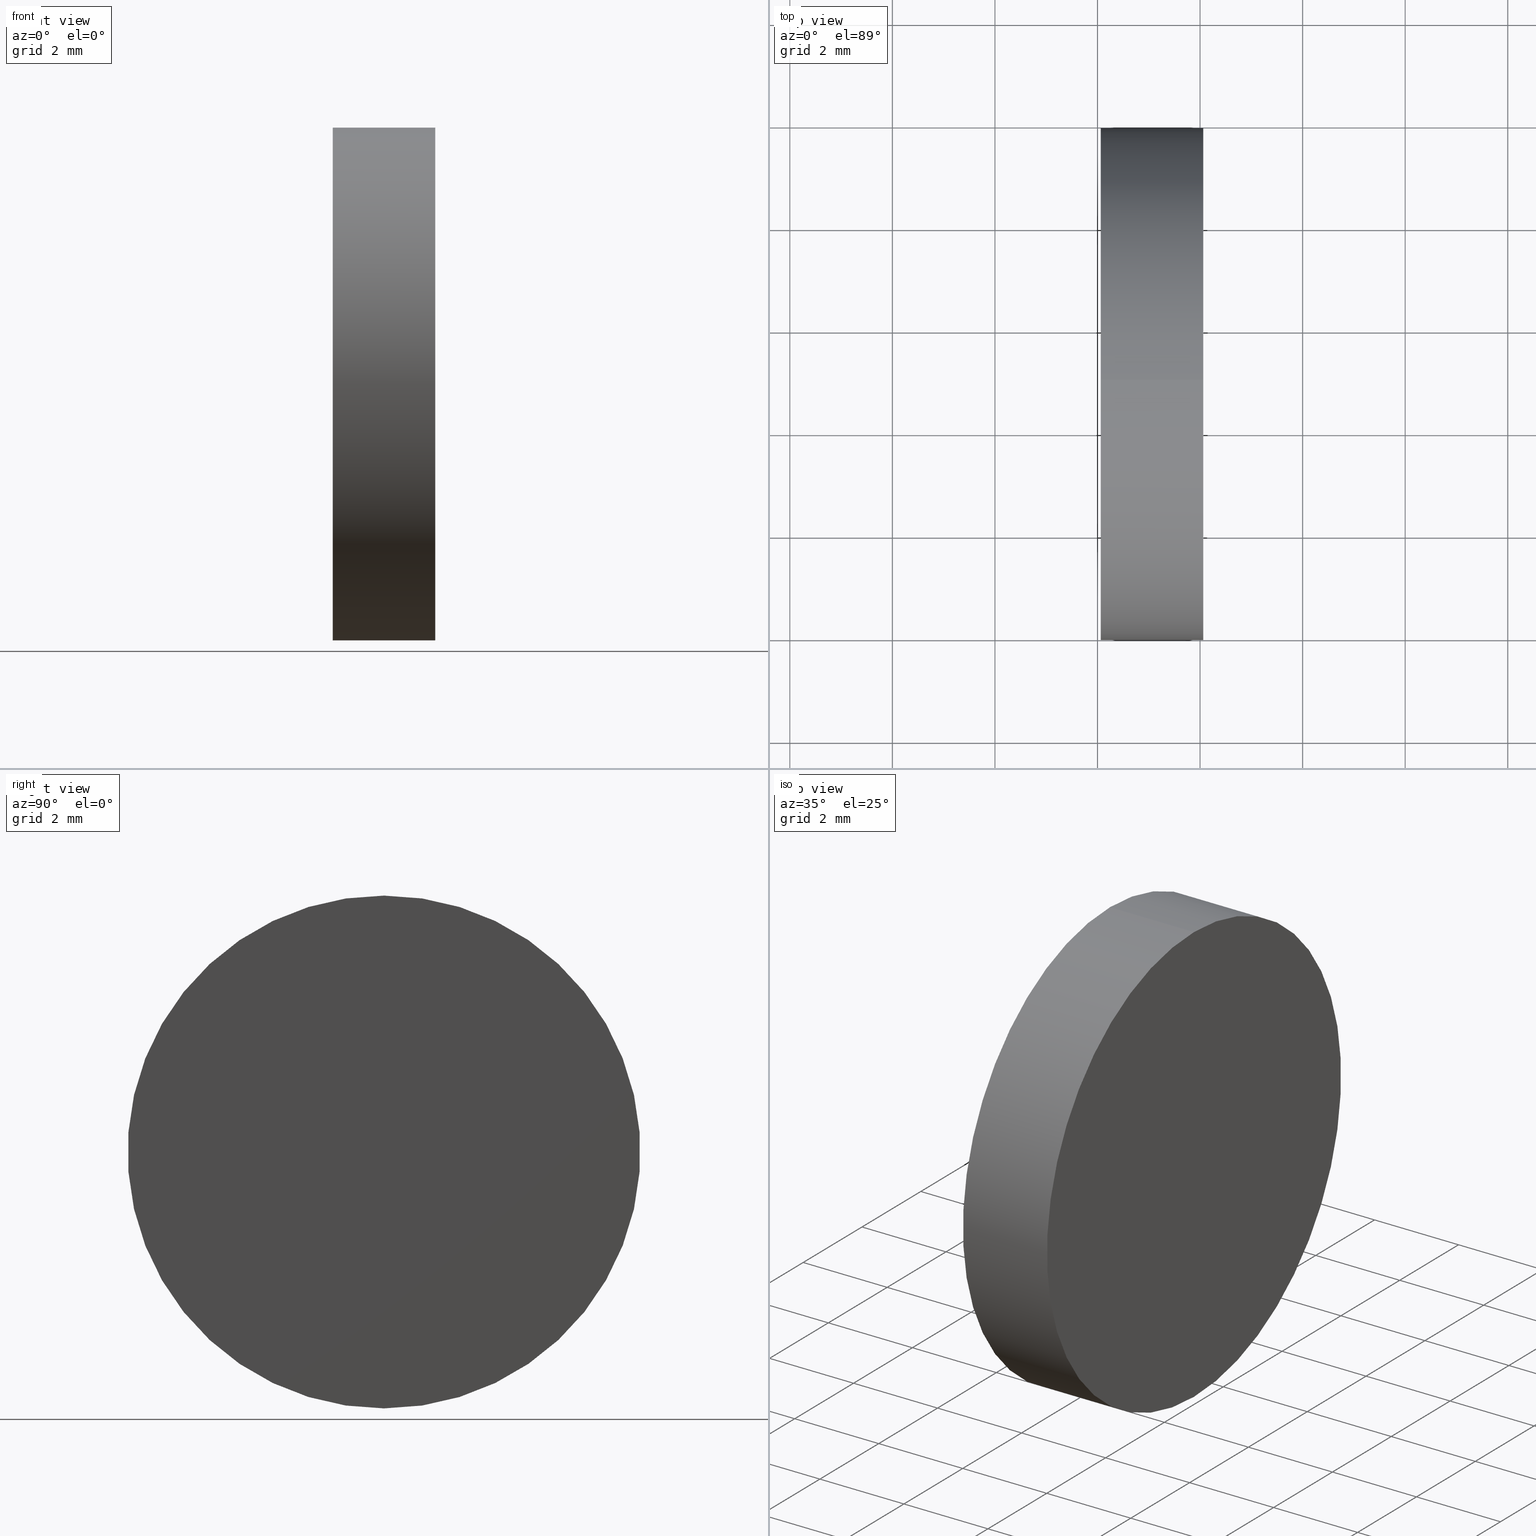
[diagram: canonical four-view strip — front | top / right | iso, engineering-drawing reading convention]
A machine part, canonical four-view strip (front | top / right | iso — engineering-drawing reading convention). The complete STEP part file that produces these views, byte-faithful:
ISO-10303-21;
HEADER;
FILE_DESCRIPTION (( 'STEP AP214' ),
    '1' );
FILE_NAME ('260002.STEP',
    '2019-07-15T02:53:04',
    ( '' ),
    ( '' ),
    'SwSTEP 2.0',
    'SolidWorks 2016',
    '' );
FILE_SCHEMA (( 'AUTOMOTIVE_DESIGN' ));
ENDSEC;

DATA;
#1 = FACE_OUTER_BOUND ( 'NONE', #66, .T. ) ;
#2 = EDGE_CURVE ( 'NONE', #92, #76, #18, .T. ) ;
#3 = CARTESIAN_POINT ( 'NONE',  ( 104.0628561970244000, 30.91727173960616800, -4.999999999999993800 ) ) ;
#4 =( NAMED_UNIT ( * ) SI_UNIT ( $, .STERADIAN. ) SOLID_ANGLE_UNIT ( ) );
#5 = ADVANCED_FACE ( 'NONE', ( #63 ), #21, .T. ) ;
#6 = ADVANCED_FACE ( 'NONE', ( #41 ), #122, .F. ) ;
#7 = COLOUR_RGB ( '',1.000000000000000000, 1.000000000000000000, 1.000000000000000000 ) ;
#8 = PRODUCT_RELATED_PRODUCT_CATEGORY ( 'part', '', ( #71 ) ) ;
#9 = PRESENTATION_LAYER_ASSIGNMENT (  '', '', ( #119 ) ) ;
#10 = UNCERTAINTY_MEASURE_WITH_UNIT (LENGTH_MEASURE( 1.000000000000000100E-005 ), #57, 'distance_accuracy_value', 'NONE');
#11 = DIRECTION ( 'NONE',  ( -1.000000000000000000, -0.0000000000000000000, -0.0000000000000000000 ) ) ;
#12 = APPLICATION_PROTOCOL_DEFINITION ( 'draft international standard', 'automotive_design', 1998, #70 ) ;
#13 = DIRECTION ( 'NONE',  ( 0.0000000000000000000, 0.0000000000000000000, 1.000000000000000000 ) ) ;
#14 = AXIS2_PLACEMENT_3D ( 'NONE', #69, #113, #82 ) ;
#15 = EDGE_CURVE ( 'NONE', #139, #42, #133, .T. ) ;
#16 = CARTESIAN_POINT ( 'NONE',  ( 104.0628561970244000, 30.91727173960616800, 0.0000000000000000000 ) ) ;
#17 = DIRECTION ( 'NONE',  ( -1.000000000000000000, -0.0000000000000000000, -0.0000000000000000000 ) ) ;
#18 = LINE ( 'NONE', #132, #53 ) ;
#19 = SURFACE_STYLE_USAGE ( .BOTH. , #84 ) ;
#20 = CARTESIAN_POINT ( 'NONE',  ( 106.0628561970244000, 30.91727173960616800, 0.0000000000000000000 ) ) ;
#21 = CYLINDRICAL_SURFACE ( 'NONE', #14, 4.999999999999993800 ) ;
#22 = ORIENTED_EDGE ( 'NONE', *, *, #111, .T. ) ;
#23 = CARTESIAN_POINT ( 'NONE',  ( 0.0000000000000000000, 0.0000000000000000000, 0.0000000000000000000 ) ) ;
#24 = AXIS2_PLACEMENT_3D ( 'NONE', #16, #56, #31 ) ;
#25 = ORIENTED_EDGE ( 'NONE', *, *, #78, .T. ) ;
#26 = CIRCLE ( 'NONE', #112, 4.999999999999993800 ) ;
#27 = CIRCLE ( 'NONE', #108, 4.999999999999993800 ) ;
#28 = PLANE ( 'NONE',  #47 ) ;
#29 = AXIS2_PLACEMENT_3D ( 'NONE', #23, #49, #109 ) ;
#30 = PRODUCT_DEFINITION_SHAPE ( 'NONE', 'NONE',  #64 ) ;
#31 = DIRECTION ( 'NONE',  ( 0.0000000000000000000, 0.0000000000000000000, 1.000000000000000000 ) ) ;
#32 = DIRECTION ( 'NONE',  ( -1.000000000000000000, -0.0000000000000000000, -0.0000000000000000000 ) ) ;
#33 = ADVANCED_FACE ( 'NONE', ( #1 ), #65, .T. ) ;
#34 = PRESENTATION_STYLE_ASSIGNMENT (( #136 ) ) ;
#35 =( LENGTH_UNIT ( ) NAMED_UNIT ( * ) SI_UNIT ( .MILLI., .METRE. ) );
#36 = MECHANICAL_DESIGN_GEOMETRIC_PRESENTATION_REPRESENTATION (  '', ( #74 ), #102 ) ;
#37 = DIRECTION ( 'NONE',  ( 1.000000000000000000, 0.0000000000000000000, 0.0000000000000000000 ) ) ;
#38 = APPLICATION_PROTOCOL_DEFINITION ( 'draft international standard', 'automotive_design', 1998, #127 ) ;
#39 = SHAPE_DEFINITION_REPRESENTATION ( #30, #128 ) ;
#40 = PRESENTATION_LAYER_ASSIGNMENT (  '', '', ( #74 ) ) ;
#41 = FACE_OUTER_BOUND ( 'NONE', #79, .T. ) ;
#42 = VERTEX_POINT ( 'NONE', #81 ) ;
#43 = UNCERTAINTY_MEASURE_WITH_UNIT (LENGTH_MEASURE( 1.000000000000000100E-005 ), #35, 'distance_accuracy_value', 'NONE');
#44 = ORIENTED_EDGE ( 'NONE', *, *, #78, .F. ) ;
#45 =( GEOMETRIC_REPRESENTATION_CONTEXT ( 3 ) GLOBAL_UNCERTAINTY_ASSIGNED_CONTEXT ( ( #43 ) ) GLOBAL_UNIT_ASSIGNED_CONTEXT ( ( #35, #116, #51 ) ) REPRESENTATION_CONTEXT ( 'NONE', 'WORKASPACE' ) );
#46 = FILL_AREA_STYLE ('',( #95 ) ) ;
#47 = AXIS2_PLACEMENT_3D ( 'NONE', #61, #37, #137 ) ;
#48 = CARTESIAN_POINT ( 'NONE',  ( 106.0628561970244000, 30.91727173960616400, 0.0000000000000000000 ) ) ;
#49 = DIRECTION ( 'NONE',  ( 0.0000000000000000000, 0.0000000000000000000, 1.000000000000000000 ) ) ;
#50 = ORIENTED_EDGE ( 'NONE', *, *, #60, .F. ) ;
#51 =( NAMED_UNIT ( * ) SI_UNIT ( $, .STERADIAN. ) SOLID_ANGLE_UNIT ( ) );
#52 = AXIS2_PLACEMENT_3D ( 'NONE', #138, #100, #13 ) ;
#53 = VECTOR ( 'NONE', #32, 1000.000000000000000 ) ;
#54 = AXIS2_PLACEMENT_3D ( 'NONE', #48, #106, #68 ) ;
#55 = ORIENTED_EDGE ( 'NONE', *, *, #15, .F. ) ;
#56 = DIRECTION ( 'NONE',  ( -1.000000000000000000, -0.0000000000000000000, -0.0000000000000000000 ) ) ;
#57 =( LENGTH_UNIT ( ) NAMED_UNIT ( * ) SI_UNIT ( .MILLI., .METRE. ) );
#58 = FILL_AREA_STYLE ('',( #123 ) ) ;
#59 = ORIENTED_EDGE ( 'NONE', *, *, #120, .F. ) ;
#60 = EDGE_CURVE ( 'NONE', #42, #76, #101, .T. ) ;
#61 = CARTESIAN_POINT ( 'NONE',  ( 104.0628561970244000, 30.91727173960616400, 0.0000000000000000000 ) ) ;
#62 = PRODUCT_DEFINITION_CONTEXT ( 'detailed design', #127, 'design' ) ;
#63 = FACE_OUTER_BOUND ( 'NONE', #105, .T. ) ;
#64 = PRODUCT_DEFINITION ( 'δ֪', '', #90, #62 ) ;
#65 = CYLINDRICAL_SURFACE ( 'NONE', #93, 4.999999999999993800 ) ;
#66 = EDGE_LOOP ( 'NONE', ( #80, #22, #103, #59 ) ) ;
#67 = EDGE_LOOP ( 'NONE', ( #104, #83 ) ) ;
#68 = DIRECTION ( 'NONE',  ( -0.0000000000000000000, 0.0000000000000000000, 1.000000000000000000 ) ) ;
#69 = CARTESIAN_POINT ( 'NONE',  ( 101.6003207970464200, 30.91727173960616800, 0.0000000000000000000 ) ) ;
#70 = APPLICATION_CONTEXT ( 'automotive_design' ) ;
#71 = PRODUCT ( '260002', '260002', '', ( #99 ) ) ;
#72 = MANIFOLD_SOLID_BREP ( '��ת1', #121 ) ;
#73 = SURFACE_SIDE_STYLE ('',( #115 ) ) ;
#74 = STYLED_ITEM ( 'NONE', ( #91 ), #72 ) ;
#75 = SURFACE_STYLE_FILL_AREA ( #46 ) ;
#76 = VERTEX_POINT ( 'NONE', #3 ) ;
#77 = UNCERTAINTY_MEASURE_WITH_UNIT (LENGTH_MEASURE( 1.000000000000000100E-005 ), #86, 'distance_accuracy_value', 'NONE');
#78 = EDGE_CURVE ( 'NONE', #139, #92, #27, .T. ) ;
#79 = EDGE_LOOP ( 'NONE', ( #44, #87 ) ) ;
#80 = ORIENTED_EDGE ( 'NONE', *, *, #2, .F. ) ;
#81 = CARTESIAN_POINT ( 'NONE',  ( 104.0628561970244000, 30.91727173960616800, 4.999999999999993800 ) ) ;
#82 = DIRECTION ( 'NONE',  ( 0.0000000000000000000, 0.0000000000000000000, 1.000000000000000000 ) ) ;
#83 = ORIENTED_EDGE ( 'NONE', *, *, #120, .T. ) ;
#84 = SURFACE_SIDE_STYLE ('',( #75 ) ) ;
#85 =( NAMED_UNIT ( * ) PLANE_ANGLE_UNIT ( ) SI_UNIT ( $, .RADIAN. ) );
#86 =( LENGTH_UNIT ( ) NAMED_UNIT ( * ) SI_UNIT ( .MILLI., .METRE. ) );
#87 = ORIENTED_EDGE ( 'NONE', *, *, #111, .F. ) ;
#88 = COLOUR_RGB ( '',1.000000000000000000, 1.000000000000000000, 1.000000000000000000 ) ;
#89 = ORIENTED_EDGE ( 'NONE', *, *, #2, .T. ) ;
#90 = PRODUCT_DEFINITION_FORMATION_WITH_SPECIFIED_SOURCE ( '�κ�', '', #71, .NOT_KNOWN. ) ;
#91 = PRESENTATION_STYLE_ASSIGNMENT (( #19 ) ) ;
#92 = VERTEX_POINT ( 'NONE', #126 ) ;
#93 = AXIS2_PLACEMENT_3D ( 'NONE', #114, #11, #94 ) ;
#94 = DIRECTION ( 'NONE',  ( 0.0000000000000000000, 0.0000000000000000000, 1.000000000000000000 ) ) ;
#95 = FILL_AREA_STYLE_COLOUR ( '', #88 ) ;
#96 = CARTESIAN_POINT ( 'NONE',  ( 101.6003207970464200, 30.91727173960616800, 4.999999999999993800 ) ) ;
#97 = CIRCLE ( 'NONE', #52, 4.999999999999993800 ) ;
#98 = DIRECTION ( 'NONE',  ( 0.0000000000000000000, 0.0000000000000000000, 1.000000000000000000 ) ) ;
#99 = PRODUCT_CONTEXT ( 'NONE', #70, 'mechanical' ) ;
#100 = DIRECTION ( 'NONE',  ( -1.000000000000000000, -0.0000000000000000000, -0.0000000000000000000 ) ) ;
#101 = CIRCLE ( 'NONE', #24, 4.999999999999993800 ) ;
#102 =( GEOMETRIC_REPRESENTATION_CONTEXT ( 3 ) GLOBAL_UNCERTAINTY_ASSIGNED_CONTEXT ( ( #10 ) ) GLOBAL_UNIT_ASSIGNED_CONTEXT ( ( #57, #134, #4 ) ) REPRESENTATION_CONTEXT ( 'NONE', 'WORKASPACE' ) );
#103 = ORIENTED_EDGE ( 'NONE', *, *, #15, .T. ) ;
#104 = ORIENTED_EDGE ( 'NONE', *, *, #60, .T. ) ;
#105 = EDGE_LOOP ( 'NONE', ( #25, #89, #50, #55 ) ) ;
#106 = DIRECTION ( 'NONE',  ( -1.000000000000000000, 0.0000000000000000000, -0.0000000000000000000 ) ) ;
#107 = CARTESIAN_POINT ( 'NONE',  ( 106.0628561970244000, 30.91727173960616800, 0.0000000000000000000 ) ) ;
#108 = AXIS2_PLACEMENT_3D ( 'NONE', #20, #124, #129 ) ;
#109 = DIRECTION ( 'NONE',  ( 1.000000000000000000, 0.0000000000000000000, 0.0000000000000000000 ) ) ;
#110 = CARTESIAN_POINT ( 'NONE',  ( 106.0628561970244000, 30.91727173960616800, 4.999999999999993800 ) ) ;
#111 = EDGE_CURVE ( 'NONE', #92, #139, #26, .T. ) ;
#112 = AXIS2_PLACEMENT_3D ( 'NONE', #107, #117, #98 ) ;
#113 = DIRECTION ( 'NONE',  ( -1.000000000000000000, -0.0000000000000000000, -0.0000000000000000000 ) ) ;
#114 = CARTESIAN_POINT ( 'NONE',  ( 101.6003207970464200, 30.91727173960616800, 0.0000000000000000000 ) ) ;
#115 = SURFACE_STYLE_FILL_AREA ( #58 ) ;
#116 =( NAMED_UNIT ( * ) PLANE_ANGLE_UNIT ( ) SI_UNIT ( $, .RADIAN. ) );
#117 = DIRECTION ( 'NONE',  ( -1.000000000000000000, -0.0000000000000000000, -0.0000000000000000000 ) ) ;
#118 = ADVANCED_FACE ( 'NONE', ( #130 ), #28, .F. ) ;
#119 = STYLED_ITEM ( 'NONE', ( #34 ), #128 ) ;
#120 = EDGE_CURVE ( 'NONE', #76, #42, #97, .T. ) ;
#121 = CLOSED_SHELL ( 'NONE', ( #5, #6, #33, #118 ) ) ;
#122 = PLANE ( 'NONE',  #54 ) ;
#123 = FILL_AREA_STYLE_COLOUR ( '', #7 ) ;
#124 = DIRECTION ( 'NONE',  ( -1.000000000000000000, -0.0000000000000000000, -0.0000000000000000000 ) ) ;
#125 = MECHANICAL_DESIGN_GEOMETRIC_PRESENTATION_REPRESENTATION (  '', ( #119 ), #140 ) ;
#126 = CARTESIAN_POINT ( 'NONE',  ( 106.0628561970244000, 30.91727173960616800, -4.999999999999993800 ) ) ;
#127 = APPLICATION_CONTEXT ( 'automotive_design' ) ;
#128 = ADVANCED_BREP_SHAPE_REPRESENTATION ( '260002', ( #72, #29 ), #45 ) ;
#129 = DIRECTION ( 'NONE',  ( 0.0000000000000000000, 0.0000000000000000000, 1.000000000000000000 ) ) ;
#130 = FACE_OUTER_BOUND ( 'NONE', #67, .T. ) ;
#131 = VECTOR ( 'NONE', #17, 1000.000000000000000 ) ;
#132 = CARTESIAN_POINT ( 'NONE',  ( 101.6003207970464200, 30.91727173960616800, -4.999999999999993800 ) ) ;
#133 = LINE ( 'NONE', #96, #131 ) ;
#134 =( NAMED_UNIT ( * ) PLANE_ANGLE_UNIT ( ) SI_UNIT ( $, .RADIAN. ) );
#135 =( NAMED_UNIT ( * ) SI_UNIT ( $, .STERADIAN. ) SOLID_ANGLE_UNIT ( ) );
#136 = SURFACE_STYLE_USAGE ( .BOTH. , #73 ) ;
#137 = DIRECTION ( 'NONE',  ( 0.0000000000000000000, 0.0000000000000000000, -1.000000000000000000 ) ) ;
#138 = CARTESIAN_POINT ( 'NONE',  ( 104.0628561970244000, 30.91727173960616800, 0.0000000000000000000 ) ) ;
#139 = VERTEX_POINT ( 'NONE', #110 ) ;
#140 =( GEOMETRIC_REPRESENTATION_CONTEXT ( 3 ) GLOBAL_UNCERTAINTY_ASSIGNED_CONTEXT ( ( #77 ) ) GLOBAL_UNIT_ASSIGNED_CONTEXT ( ( #86, #85, #135 ) ) REPRESENTATION_CONTEXT ( 'NONE', 'WORKASPACE' ) );
ENDSEC;
END-ISO-10303-21;
